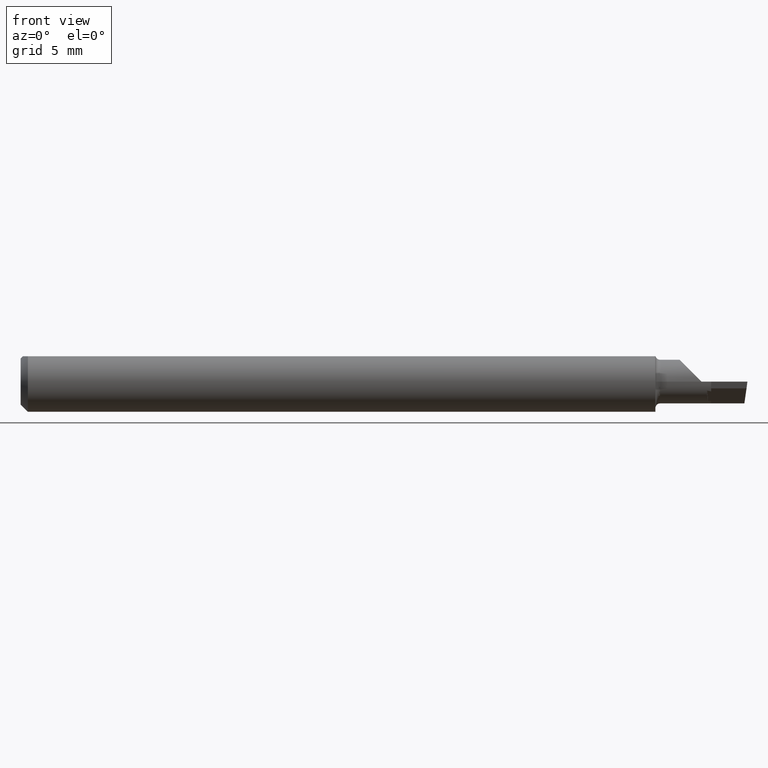
[diagram: clean part render]
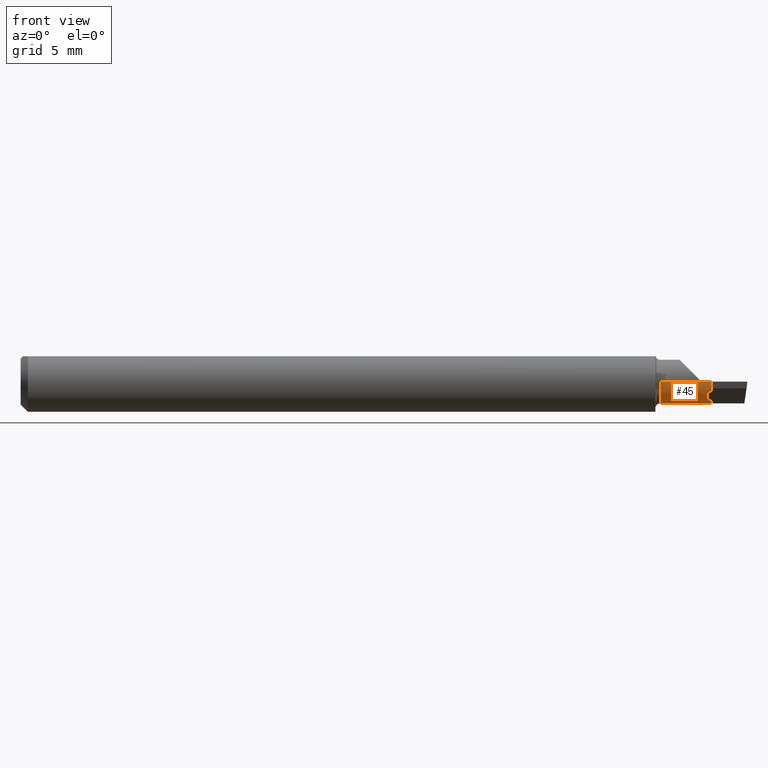
[diagram: same view with one face highlighted and labeled with its STEP entity id]
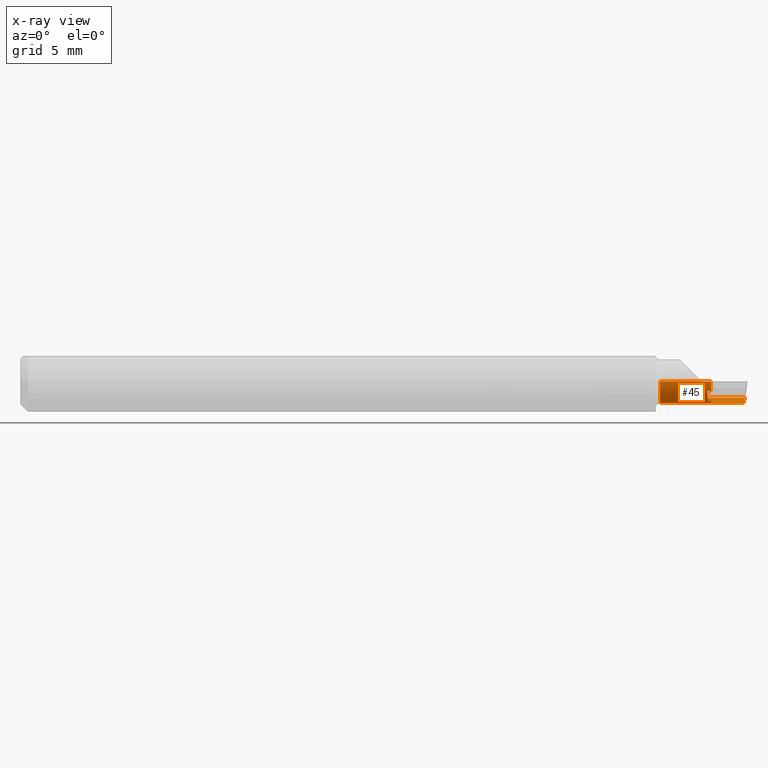
[diagram: x-ray of the same camera — body ghosted, the highlighted face saturated]
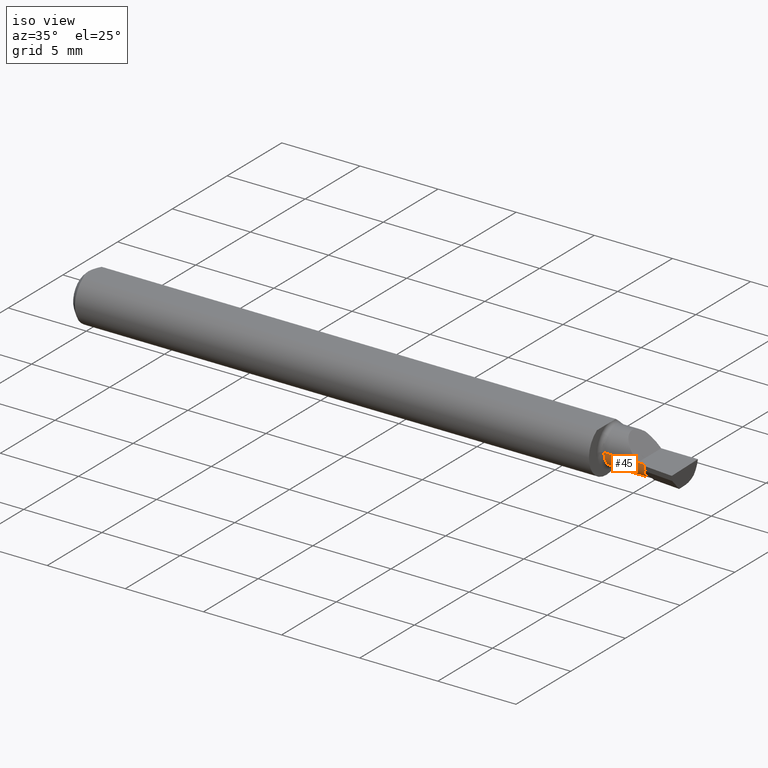
[diagram: same view with one face highlighted and labeled with its STEP entity id]
A machine part, front view. The second image highlights one B-rep face of the part: STEP entity #45.
The next image is the same camera in x-ray: the body ghosted, the highlighted face saturated — about 0% of this face is hidden behind the body in this view.
A second angle (iso view) of the same face is appended — the face is thin or edge-on in the first view.
In plain terms, the highlighted cylindrical surface (edge-blend (fillet) strip) has radius 1.1443 mm, axis along (-1, 0, -0).
Its self-contained STEP definition (entity closure, byte-faithful):
#26 = ORIENTED_EDGE ( 'NONE', *, *, #315, .F. ) ;
#29 = AXIS2_PLACEMENT_3D ( 'NONE', #105, #374, #478 ) ;
#30 = DIRECTION ( 'NONE',  ( -1.000000000000000000, 2.845674993400274571E-18, -0.000000000000000000 ) ) ;
#37 = ORIENTED_EDGE ( 'NONE', *, *, #651, .T. ) ;
#44 = LINE ( 'NONE', #253, #480 ) ;
#45 = ADVANCED_FACE ( 'NONE', ( #130 ), #542, .T. ) ;
#54 = EDGE_CURVE ( 'NONE', #66, #505, #133, .T. ) ;
#62 = ORIENTED_EDGE ( 'NONE', *, *, #54, .F. ) ;
#66 = VERTEX_POINT ( 'NONE', #278 ) ;
#71 = CARTESIAN_POINT ( 'NONE',  ( 0.000000000000000000, 0.02239999999999999977, 0.000000000000000000 ) ) ;
#76 = DIRECTION ( 'NONE',  ( -2.845674993400274956E-18, -1.000000000000000000, 0.000000000000000000 ) ) ;
#84 = CIRCLE ( 'NONE', #121, 0.04505000000000000671 ) ;
#87 = CARTESIAN_POINT ( 'NONE',  ( 1.420965656909965347, 0.002454328612438455830, -0.04039634369917824430 ) ) ;
#94 = CARTESIAN_POINT ( 'NONE',  ( 1.417174806059530834, -0.01419764798055399985, -0.02834783174770362860 ) ) ;
#97 = CARTESIAN_POINT ( 'NONE',  ( 1.492807588596031021, 0.03372388044486961112, -0.04504999999999999977 ) ) ;
#105 = CARTESIAN_POINT ( 'NONE',  ( 1.425000000000000266, 0.02239999999999999630, 0.000000000000000000 ) ) ;
#111 = DIRECTION ( 'NONE',  ( -1.000000000000000000, -0.000000000000000000, -0.000000000000000000 ) ) ;
#112 = VERTEX_POINT ( 'NONE', #446 ) ;
#117 = EDGE_CURVE ( 'NONE', #569, #157, #277, .T. ) ;
#121 = AXIS2_PLACEMENT_3D ( 'NONE', #282, #552, #660 ) ;
#130 = FACE_OUTER_BOUND ( 'NONE', #466, .T. ) ;
#133 = LINE ( 'NONE', #287, #676 ) ;
#144 = VERTEX_POINT ( 'NONE', #178 ) ;
#146 = CARTESIAN_POINT ( 'NONE',  ( 1.493007492022672800, 0.04428776192107808374, -0.04097143695815298747 ) ) ;
#147 = ORIENTED_EDGE ( 'NONE', *, *, #246, .T. ) ;
#150 = CARTESIAN_POINT ( 'NONE',  ( 1.493110947889332518, 0.02239999999999998936, -0.04504999999999998589 ) ) ;
#155 = EDGE_CURVE ( 'NONE', #505, #199, #84, .T. ) ;
#157 = VERTEX_POINT ( 'NONE', #284 ) ;
#158 = CARTESIAN_POINT ( 'NONE',  ( 1.418816209675800577, 0.002848980343177142174, -0.04058645254735287339 ) ) ;
#169 = CARTESIAN_POINT ( 'NONE',  ( 1.418816209675800577, 0.002848980343177142174, -0.04058645254735287339 ) ) ;
#178 = CARTESIAN_POINT ( 'NONE',  ( 1.493110947889332518, 0.02239999999999998936, -0.04504999999999998589 ) ) ;
#199 = VERTEX_POINT ( 'NONE', #409 ) ;
#200 = DIRECTION ( 'NONE',  ( -1.000000000000000000, 2.845674993400274571E-18, -0.000000000000000000 ) ) ;
#204 = CARTESIAN_POINT ( 'NONE',  ( 1.493683825247659858, 0.05267366071428571800, -0.03336177403790620971 ) ) ;
#217 = ORIENTED_EDGE ( 'NONE', *, *, #397, .T. ) ;
#233 = CARTESIAN_POINT ( 'NONE',  ( 1.422402899020165590, -0.01812047455623713721, -0.01969584104371080793 ) ) ;
#236 = ORIENTED_EDGE ( 'NONE', *, *, #155, .F. ) ;
#246 = EDGE_CURVE ( 'NONE', #157, #673, #642, .T. ) ;
#253 = CARTESIAN_POINT ( 'NONE',  ( -1.281976584526598441E-19, -0.02264999999999999306, 1.836970198721035850E-16 ) ) ;
#255 = EDGE_CURVE ( 'NONE', #66, #144, #559, .T. ) ;
#269 = CARTESIAN_POINT ( 'NONE',  ( 1.500000000000000222, 0.02239999999999998936, -0.04504999999999998589 ) ) ;
#277 =( BOUNDED_CURVE ( )  B_SPLINE_CURVE ( 3, ( #494, #328, #233, #665 ),
 .UNSPECIFIED., .F., .F. ) 
 B_SPLINE_CURVE_WITH_KNOTS ( ( 4, 4 ),
 ( 2.789458599401964278, 2.827856182169776744 ),
 .UNSPECIFIED. ) 
 CURVE ( )  GEOMETRIC_REPRESENTATION_ITEM ( )  RATIONAL_B_SPLINE_CURVE ( ( 1.000000000000000000, 0.9998771392436758276, 0.9998771392436758276, 1.000000000000000000 ) ) 
 REPRESENTATION_ITEM ( '' )  );
#278 = CARTESIAN_POINT ( 'NONE',  ( 1.493683825247659858, 0.05267366071428571800, -0.03336177403790620971 ) ) ;
#282 = CARTESIAN_POINT ( 'NONE',  ( 1.320000000000000062, 0.02239999999999999630, 0.000000000000000000 ) ) ;
#284 = CARTESIAN_POINT ( 'NONE',  ( 1.425000000000000266, -0.01786177170425026425, -0.02021119094053668713 ) ) ;
#287 = CARTESIAN_POINT ( 'NONE',  ( 1.372500000000000275, 0.05267366071428571800, -0.03336177403790620971 ) ) ;
#288 = ORIENTED_EDGE ( 'NONE', *, *, #523, .T. ) ;
#296 = ORIENTED_EDGE ( 'NONE', *, *, #389, .T. ) ;
#310 = CARTESIAN_POINT ( 'NONE',  ( 1.425000000000000266, 0.001673552391433375322, -0.03999896085561901321 ) ) ;
#315 = EDGE_CURVE ( 'NONE', #399, #673, #44, .T. ) ;
#321 =( BOUNDED_CURVE ( )  B_SPLINE_CURVE ( 3, ( #425, #352, #94, #360 ),
 .UNSPECIFIED., .F., .F. ) 
 B_SPLINE_CURVE_WITH_KNOTS ( ( 4, 4 ),
 ( 5.161300211869626509, 5.856340895040212935 ),
 .UNSPECIFIED. ) 
 CURVE ( )  GEOMETRIC_REPRESENTATION_ITEM ( )  RATIONAL_B_SPLINE_CURVE ( ( 1.000000000000000000, 0.9601467289652723114, 0.9601467289652723114, 1.000000000000000000 ) ) 
 REPRESENTATION_ITEM ( '' )  );
#327 = CARTESIAN_POINT ( 'NONE',  ( 1.416750140823865189, -0.01860796507907701292, -0.01865071848678225355 ) ) ;
#328 = CARTESIAN_POINT ( 'NONE',  ( 1.419652608058626031, -0.01836923624422850954, -0.01917561964433141253 ) ) ;
#331 = DIRECTION ( 'NONE',  ( -1.000000000000000000, 2.845674993400274571E-18, -0.000000000000000000 ) ) ;
#334 = AXIS2_PLACEMENT_3D ( 'NONE', #358, #200, #679 ) ;
#352 = CARTESIAN_POINT ( 'NONE',  ( 1.417892081447277297, -0.006748458262999814349, -0.03596324211462059023 ) ) ;
#358 = CARTESIAN_POINT ( 'NONE',  ( 1.425000000000000266, 0.02239999999999999630, 0.000000000000000000 ) ) ;
#360 = CARTESIAN_POINT ( 'NONE',  ( 1.416750140823865189, -0.01860796507907701292, -0.01865071848678225355 ) ) ;
#374 = DIRECTION ( 'NONE',  ( -1.000000000000000000, 2.845674993400274571E-18, -0.000000000000000000 ) ) ;
#389 = EDGE_CURVE ( 'NONE', #144, #112, #576, .T. ) ;
#397 = EDGE_CURVE ( 'NONE', #112, #424, #643, .T. ) ;
#399 = VERTEX_POINT ( 'NONE', #473 ) ;
#401 = CARTESIAN_POINT ( 'NONE',  ( 1.320000000000000062, 0.05267366071428517676, -0.03336177403790670931 ) ) ;
#409 = CARTESIAN_POINT ( 'NONE',  ( 1.320000000000000062, -0.02265000000000001387, 0.000000000000000000 ) ) ;
#410 = ORIENTED_EDGE ( 'NONE', *, *, #683, .T. ) ;
#412 = DIRECTION ( 'NONE',  ( -1.000000000000000000, 2.845674993400274571E-18, -0.000000000000000000 ) ) ;
#424 = VERTEX_POINT ( 'NONE', #310 ) ;
#425 = CARTESIAN_POINT ( 'NONE',  ( 1.418816209675800577, 0.002848980343177142174, -0.04058645254735287339 ) ) ;
#430 = VECTOR ( 'NONE', #412, 39.37007874015748143 ) ;
#432 = VERTEX_POINT ( 'NONE', #158 ) ;
#434 = ORIENTED_EDGE ( 'NONE', *, *, #117, .T. ) ;
#446 = CARTESIAN_POINT ( 'NONE',  ( 1.425000000000000266, 0.02239999999999998936, -0.04504999999999999283 ) ) ;
#466 = EDGE_LOOP ( 'NONE', ( #26, #410, #236, #62, #626, #296, #217, #288, #37, #434, #147 ) ) ;
#473 = CARTESIAN_POINT ( 'NONE',  ( 1.405000000000000249, -0.02265000000000006591, 1.163414459189988826E-17 ) ) ;
#478 = DIRECTION ( 'NONE',  ( 0.000000000000000000, -1.000000000000000000, 0.000000000000000000 ) ) ;
#480 = VECTOR ( 'NONE', #681, 39.37007874015748143 ) ;
#494 = CARTESIAN_POINT ( 'NONE',  ( 1.416750140823865189, -0.01860796507907701292, -0.01865071848678225355 ) ) ;
#505 = VERTEX_POINT ( 'NONE', #401 ) ;
#523 = EDGE_CURVE ( 'NONE', #424, #432, #532, .T. ) ;
#532 =( BOUNDED_CURVE ( )  B_SPLINE_CURVE ( 3, ( #652, #615, #87, #169 ),
 .UNSPECIFIED., .F., .F. ) 
 B_SPLINE_CURVE_WITH_KNOTS ( ( 4, 4 ),
 ( 3.455329125009810376, 3.484499282572550261 ),
 .UNSPECIFIED. ) 
 CURVE ( )  GEOMETRIC_REPRESENTATION_ITEM ( )  RATIONAL_B_SPLINE_CURVE ( ( 1.000000000000000000, 0.9999290930826304491, 0.9999290930826304491, 1.000000000000000000 ) ) 
 REPRESENTATION_ITEM ( '' )  );
#542 = CYLINDRICAL_SURFACE ( 'NONE', #630, 0.04504999999999999977 ) ;
#552 = DIRECTION ( 'NONE',  ( -1.000000000000000000, 2.845674993400274571E-18, -0.000000000000000000 ) ) ;
#559 =( BOUNDED_CURVE ( )  B_SPLINE_CURVE ( 3, ( #204, #146, #97, #150 ),
 .UNSPECIFIED., .F., .T. ) 
 B_SPLINE_CURVE_WITH_KNOTS ( ( 4, 4 ),
 ( 5.768791532628641860, 6.505699533271572577 ),
 .UNSPECIFIED. ) 
 CURVE ( )  GEOMETRIC_REPRESENTATION_ITEM ( )  RATIONAL_B_SPLINE_CURVE ( ( 1.000000000000000000, 0.9552568590268905036, 0.9552568590268905036, 1.000000000000000000 ) ) 
 REPRESENTATION_ITEM ( '' )  );
#569 = VERTEX_POINT ( 'NONE', #327 ) ;
#576 = LINE ( 'NONE', #269, #585 ) ;
#582 = CARTESIAN_POINT ( 'NONE',  ( -1.281976584526823775E-19, -0.02264999999999999999, 0.000000000000000000 ) ) ;
#585 = VECTOR ( 'NONE', #111, 39.37007874015748143 ) ;
#615 = CARTESIAN_POINT ( 'NONE',  ( 1.423027066519566342, 0.002062491511229570893, -0.04020049924854067480 ) ) ;
#626 = ORIENTED_EDGE ( 'NONE', *, *, #255, .T. ) ;
#630 = AXIS2_PLACEMENT_3D ( 'NONE', #71, #331, #76 ) ;
#632 = LINE ( 'NONE', #582, #430 ) ;
#638 = CARTESIAN_POINT ( 'NONE',  ( 1.425000000000000266, -0.02264999999999999653, 0.000000000000000000 ) ) ;
#642 = CIRCLE ( 'NONE', #334, 0.04504999999999999283 ) ;
#643 = CIRCLE ( 'NONE', #29, 0.04504999999999999283 ) ;
#651 = EDGE_CURVE ( 'NONE', #432, #569, #321, .T. ) ;
#652 = CARTESIAN_POINT ( 'NONE',  ( 1.425000000000000266, 0.001673552391433375322, -0.03999896085561901321 ) ) ;
#660 = DIRECTION ( 'NONE',  ( 0.000000000000000000, -1.000000000000000000, 0.000000000000000000 ) ) ;
#665 = CARTESIAN_POINT ( 'NONE',  ( 1.425000000000000266, -0.01786177170425026425, -0.02021119094053668713 ) ) ;
#673 = VERTEX_POINT ( 'NONE', #638 ) ;
#676 = VECTOR ( 'NONE', #30, 39.37007874015748143 ) ;
#679 = DIRECTION ( 'NONE',  ( 0.000000000000000000, -1.000000000000000000, 0.000000000000000000 ) ) ;
#681 = DIRECTION ( 'NONE',  ( 1.000000000000000000, -2.845674993400274571E-18, 0.000000000000000000 ) ) ;
#683 = EDGE_CURVE ( 'NONE', #399, #199, #632, .T. ) ;